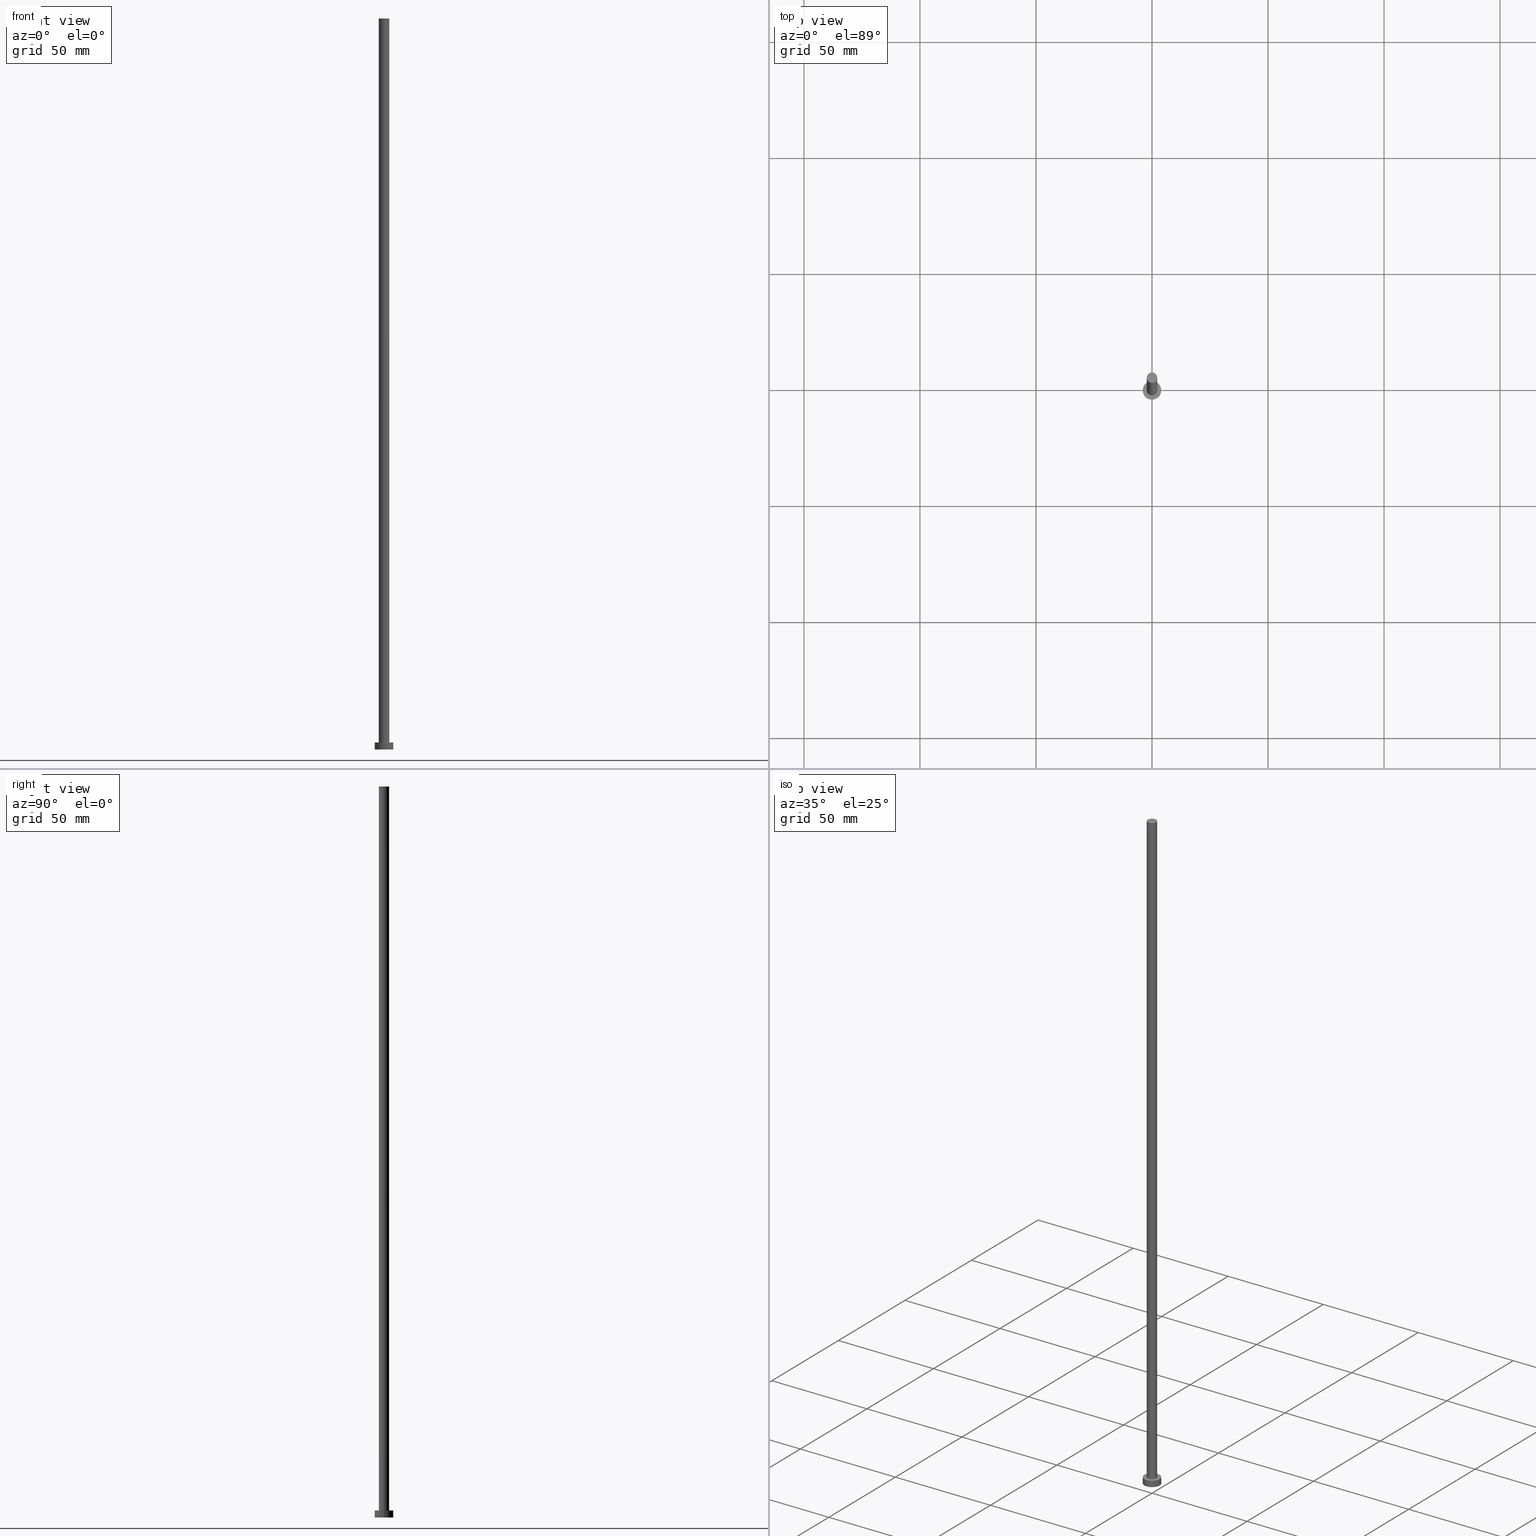
[diagram: canonical four-view strip — front | top / right | iso, engineering-drawing reading convention]
A machine part, canonical four-view strip (front | top / right | iso — engineering-drawing reading convention). The complete STEP part file that produces these views, byte-faithful:
ISO-10303-21;
HEADER;
FILE_DESCRIPTION (( 'STEP AP203' ),
    '1' );
FILE_NAME ('6284.STEP',
    '2023-02-12T12:33:04',
    ( '' ),
    ( '' ),
    'SwSTEP 2.0',
    'SolidWorks 2019',
    '' );
FILE_SCHEMA (( 'CONFIG_CONTROL_DESIGN' ));
ENDSEC;

DATA;
#1 = APPROVAL_STATUS ( 'not_yet_approved' ) ;
#2 = APPROVAL_STATUS ( 'not_yet_approved' ) ;
#3 = ORIENTED_EDGE ( 'NONE', *, *, #124, .T. ) ;
#4 = ADVANCED_FACE ( 'NONE', ( #28 ), #208, .T. ) ;
#5 = CC_DESIGN_DATE_AND_TIME_ASSIGNMENT ( #69, #27, ( #230 ) ) ;
#6 = ORIENTED_EDGE ( 'NONE', *, *, #118, .T. ) ;
#7 = PERSON ( 'NEUR�EN�', 'NEUR�EN�', 'NEUR�EN�', ('NEUR�EN�'), ('NEUR�EN�'), ('NEUR�EN�') ) ;
#8 = CARTESIAN_POINT ( 'NONE',  ( 0.000000000000000000, 0.000000000000000000, 315.0000000000000000 ) ) ;
#9 = CIRCLE ( 'NONE', #45, 2.250000000000000000 ) ;
#10 = CC_DESIGN_APPROVAL ( #105, ( #171 ) ) ;
#11 = EDGE_LOOP ( 'NONE', ( #88, #152 ) ) ;
#12 = DIRECTION ( 'NONE',  ( -0.000000000000000000, -0.000000000000000000, -1.000000000000000000 ) ) ;
#13 = DIRECTION ( 'NONE',  ( 1.000000000000000000, 0.000000000000000000, 0.000000000000000000 ) ) ;
#14 =( NAMED_UNIT ( * ) PLANE_ANGLE_UNIT ( ) SI_UNIT ( $, .RADIAN. ) );
#15 = CARTESIAN_POINT ( 'NONE',  ( 2.250000000000000000, 2.755455298081544285E-16, 3.000000000000000000 ) ) ;
#16 = LOCAL_TIME ( 13, 33, 4.000000000000000000, #198 ) ;
#17 = CARTESIAN_POINT ( 'NONE',  ( 0.000000000000000000, 0.000000000000000000, 3.000000000000000000 ) ) ;
#18 = CALENDAR_DATE ( 2023, 12, 2 ) ;
#19 = CARTESIAN_POINT ( 'NONE',  ( 4.000000000000000000, 4.898587196589412829E-16, 3.000000000000000000 ) ) ;
#20 = DATE_AND_TIME ( #62, #87 ) ;
#21 = ORGANIZATION ( 'NEUR�EN�', 'NEUR�EN�', '' ) ;
#22 = ORIENTED_EDGE ( 'NONE', *, *, #149, .T. ) ;
#23 = AXIS2_PLACEMENT_3D ( 'NONE', #249, #80, #117 ) ;
#24 = ORIENTED_EDGE ( 'NONE', *, *, #34, .T. ) ;
#25 = EDGE_CURVE ( 'NONE', #74, #108, #167, .T. ) ;
#26 = DATE_AND_TIME ( #71, #185 ) ;
#27 = DATE_TIME_ROLE ( 'classification_date' ) ;
#28 = FACE_OUTER_BOUND ( 'NONE', #65, .T. ) ;
#29 = EDGE_CURVE ( 'NONE', #70, #130, #57, .T. ) ;
#30 = PERSON_AND_ORGANIZATION_ROLE ( 'design_supplier' ) ;
#31 = ORIENTED_EDGE ( 'NONE', *, *, #118, .F. ) ;
#32 = DIRECTION ( 'NONE',  ( 0.000000000000000000, 0.000000000000000000, 1.000000000000000000 ) ) ;
#33 = DIRECTION ( 'NONE',  ( -1.000000000000000000, 0.000000000000000000, 0.000000000000000000 ) ) ;
#34 = EDGE_CURVE ( 'NONE', #188, #168, #72, .T. ) ;
#35 = DIRECTION ( 'NONE',  ( -0.000000000000000000, -0.000000000000000000, -1.000000000000000000 ) ) ;
#36 = VECTOR ( 'NONE', #157, 1000.000000000000000 ) ;
#37 = DIRECTION ( 'NONE',  ( 0.000000000000000000, 0.000000000000000000, 1.000000000000000000 ) ) ;
#38 = CARTESIAN_POINT ( 'NONE',  ( 0.000000000000000000, 0.000000000000000000, 3.000000000000000000 ) ) ;
#39 = CC_DESIGN_PERSON_AND_ORGANIZATION_ASSIGNMENT ( #67, #224, ( #230 ) ) ;
#40 = APPROVAL_ROLE ( '' ) ;
#41 = AXIS2_PLACEMENT_3D ( 'NONE', #98, #232, #95 ) ;
#42 = CALENDAR_DATE ( 2023, 12, 2 ) ;
#43 = ORIENTED_EDGE ( 'NONE', *, *, #55, .F. ) ;
#44 = ORIENTED_EDGE ( 'NONE', *, *, #191, .T. ) ;
#45 = AXIS2_PLACEMENT_3D ( 'NONE', #38, #253, #173 ) ;
#46 = APPROVAL_ROLE ( '' ) ;
#47 = ORIENTED_EDGE ( 'NONE', *, *, #149, .F. ) ;
#48 = CC_DESIGN_PERSON_AND_ORGANIZATION_ASSIGNMENT ( #200, #147, ( #121 ) ) ;
#49 =( NAMED_UNIT ( * ) SI_UNIT ( $, .STERADIAN. ) SOLID_ANGLE_UNIT ( ) );
#50 = EDGE_LOOP ( 'NONE', ( #3, #125 ) ) ;
#51 = DIRECTION ( 'NONE',  ( 1.000000000000000000, 0.000000000000000000, 0.000000000000000000 ) ) ;
#52 = EDGE_CURVE ( 'NONE', #188, #108, #166, .T. ) ;
#53 = DIRECTION ( 'NONE',  ( -1.000000000000000000, 0.000000000000000000, 0.000000000000000000 ) ) ;
#54 = DIRECTION ( 'NONE',  ( -0.000000000000000000, -0.000000000000000000, -1.000000000000000000 ) ) ;
#55 = EDGE_CURVE ( 'NONE', #131, #70, #115, .T. ) ;
#56 = DIRECTION ( 'NONE',  ( 0.000000000000000000, 0.000000000000000000, 1.000000000000000000 ) ) ;
#57 = CIRCLE ( 'NONE', #204, 2.250000000000000000 ) ;
#58 = CARTESIAN_POINT ( 'NONE',  ( 0.000000000000000000, 0.000000000000000000, 0.000000000000000000 ) ) ;
#59 = APPROVAL_PERSON_ORGANIZATION ( #102, #193, #40 ) ;
#60 = CARTESIAN_POINT ( 'NONE',  ( -2.250000000000000000, 0.000000000000000000, 3.000000000000000000 ) ) ;
#61 = PRODUCT_RELATED_PRODUCT_CATEGORY ( 'detail', '', ( #83 ) ) ;
#62 = CALENDAR_DATE ( 2023, 12, 2 ) ;
#63 = APPROVAL_STATUS ( 'not_yet_approved' ) ;
#64 = CC_DESIGN_PERSON_AND_ORGANIZATION_ASSIGNMENT ( #165, #30, ( #121 ) ) ;
#65 = EDGE_LOOP ( 'NONE', ( #221, #242, #227, #94 ) ) ;
#66 = AXIS2_PLACEMENT_3D ( 'NONE', #141, #219, #158 ) ;
#67 = PERSON_AND_ORGANIZATION ( #7, #21 ) ;
#68 = UNCERTAINTY_MEASURE_WITH_UNIT (LENGTH_MEASURE( 1.000000000000000082E-05 ), #110, 'distance_accuracy_value', 'NONE');
#69 = DATE_AND_TIME ( #223, #93 ) ;
#70 = VERTEX_POINT ( 'NONE', #60 ) ;
#71 = CALENDAR_DATE ( 2023, 12, 2 ) ;
#72 = CIRCLE ( 'NONE', #85, 4.000000000000000000 ) ;
#73 = ORIENTED_EDGE ( 'NONE', *, *, #34, .F. ) ;
#74 = VERTEX_POINT ( 'NONE', #136 ) ;
#75 = ORIENTED_EDGE ( 'NONE', *, *, #52, .F. ) ;
#76 = ADVANCED_FACE ( 'NONE', ( #197, #199 ), #214, .T. ) ;
#77 = CYLINDRICAL_SURFACE ( 'NONE', #109, 4.000000000000000000 ) ;
#78 = DIRECTION ( 'NONE',  ( 0.000000000000000000, 0.000000000000000000, 1.000000000000000000 ) ) ;
#79 = ADVANCED_FACE ( 'NONE', ( #114 ), #112, .T. ) ;
#80 = DIRECTION ( 'NONE',  ( 0.000000000000000000, 0.000000000000000000, 1.000000000000000000 ) ) ;
#81 = MECHANICAL_CONTEXT ( 'NONE', #122, 'mechanical' ) ;
#82 = CARTESIAN_POINT ( 'NONE',  ( 0.000000000000000000, 0.000000000000000000, 315.0000000000000000 ) ) ;
#83 = PRODUCT ( '6284', '6284', '', ( #81 ) ) ;
#84 = PERSON_AND_ORGANIZATION ( #7, #21 ) ;
#85 = AXIS2_PLACEMENT_3D ( 'NONE', #241, #144, #169 ) ;
#86 = DIRECTION ( 'NONE',  ( 1.000000000000000000, 0.000000000000000000, 0.000000000000000000 ) ) ;
#87 = LOCAL_TIME ( 13, 33, 4.000000000000000000, #216 ) ;
#88 = ORIENTED_EDGE ( 'NONE', *, *, #29, .F. ) ;
#89 = ORIENTED_EDGE ( 'NONE', *, *, #52, .T. ) ;
#90 = ORIENTED_EDGE ( 'NONE', *, *, #220, .F. ) ;
#91 = AXIS2_PLACEMENT_3D ( 'NONE', #100, #194, #13 ) ;
#92 = DIRECTION ( 'NONE',  ( -1.000000000000000000, 0.000000000000000000, 0.000000000000000000 ) ) ;
#93 = LOCAL_TIME ( 13, 33, 4.000000000000000000, #146 ) ;
#94 = ORIENTED_EDGE ( 'NONE', *, *, #29, .T. ) ;
#95 = DIRECTION ( 'NONE',  ( 1.000000000000000000, 0.000000000000000000, -0.000000000000000000 ) ) ;
#96 = DIRECTION ( 'NONE',  ( 1.000000000000000000, 0.000000000000000000, 0.000000000000000000 ) ) ;
#97 = CARTESIAN_POINT ( 'NONE',  ( 4.000000000000000000, 4.898587196589412829E-16, 3.000000000000000000 ) ) ;
#98 = CARTESIAN_POINT ( 'NONE',  ( 0.000000000000000000, 0.000000000000000000, 0.000000000000000000 ) ) ;
#99 = DATE_AND_TIME ( #18, #16 ) ;
#100 = CARTESIAN_POINT ( 'NONE',  ( 0.000000000000000000, 0.000000000000000000, 315.0000000000000000 ) ) ;
#101 =( GEOMETRIC_REPRESENTATION_CONTEXT ( 3 ) GLOBAL_UNCERTAINTY_ASSIGNED_CONTEXT ( ( #68 ) ) GLOBAL_UNIT_ASSIGNED_CONTEXT ( ( #110, #14, #49 ) ) REPRESENTATION_CONTEXT ( 'NONE', 'WORKASPACE' ) );
#102 = PERSON_AND_ORGANIZATION ( #7, #21 ) ;
#103 = DIRECTION ( 'NONE',  ( 0.000000000000000000, 0.000000000000000000, 1.000000000000000000 ) ) ;
#104 = PERSON_AND_ORGANIZATION_ROLE ( 'design_owner' ) ;
#105 = APPROVAL ( #63, 'NEUR�EN�' ) ;
#106 = AXIS2_PLACEMENT_3D ( 'NONE', #82, #37, #51 ) ;
#107 = DIRECTION ( 'NONE',  ( -0.000000000000000000, -0.000000000000000000, -1.000000000000000000 ) ) ;
#108 = VERTEX_POINT ( 'NONE', #176 ) ;
#109 = AXIS2_PLACEMENT_3D ( 'NONE', #154, #229, #53 ) ;
#110 =( LENGTH_UNIT ( ) NAMED_UNIT ( * ) SI_UNIT ( .MILLI., .METRE. ) );
#111 = CYLINDRICAL_SURFACE ( 'NONE', #181, 4.000000000000000000 ) ;
#112 = PLANE ( 'NONE',  #113 ) ;
#113 = AXIS2_PLACEMENT_3D ( 'NONE', #212, #195, #217 ) ;
#114 = FACE_OUTER_BOUND ( 'NONE', #50, .T. ) ;
#115 = LINE ( 'NONE', #192, #252 ) ;
#116 = DATE_TIME_ROLE ( 'creation_date' ) ;
#117 = DIRECTION ( 'NONE',  ( 1.000000000000000000, 0.000000000000000000, 0.000000000000000000 ) ) ;
#118 = EDGE_CURVE ( 'NONE', #168, #74, #236, .T. ) ;
#119 = APPROVAL_DATE_TIME ( #99, #193 ) ;
#120 = DIRECTION ( 'NONE',  ( 0.000000000000000000, 0.000000000000000000, 1.000000000000000000 ) ) ;
#121 = PRODUCT_DEFINITION_FORMATION_WITH_SPECIFIED_SOURCE ( 'LIBOVOLN�', '', #83, .NOT_KNOWN. ) ;
#122 = APPLICATION_CONTEXT ( 'configuration controlled 3d designs of mechanical parts and assemblies' ) ;
#123 = DATE_AND_TIME ( #42, #254 ) ;
#124 = EDGE_CURVE ( 'NONE', #131, #150, #245, .T. ) ;
#125 = ORIENTED_EDGE ( 'NONE', *, *, #220, .T. ) ;
#126 = EDGE_LOOP ( 'NONE', ( #31, #73, #89, #164 ) ) ;
#127 = AXIS2_PLACEMENT_3D ( 'NONE', #228, #56, #96 ) ;
#128 = ADVANCED_BREP_SHAPE_REPRESENTATION ( '6284', ( #250, #151 ), #101 ) ;
#129 = AXIS2_PLACEMENT_3D ( 'NONE', #8, #107, #92 ) ;
#130 = VERTEX_POINT ( 'NONE', #15 ) ;
#131 = VERTEX_POINT ( 'NONE', #213 ) ;
#132 = DIRECTION ( 'NONE',  ( 1.000000000000000000, 0.000000000000000000, 0.000000000000000000 ) ) ;
#133 = VECTOR ( 'NONE', #35, 1000.000000000000000 ) ;
#134 = CARTESIAN_POINT ( 'NONE',  ( 2.250000000000000000, 2.755455298081544285E-16, 315.0000000000000000 ) ) ;
#135 = FACE_OUTER_BOUND ( 'NONE', #209, .T. ) ;
#136 = CARTESIAN_POINT ( 'NONE',  ( 4.000000000000000000, 4.898587196589412829E-16, 0.000000000000000000 ) ) ;
#137 = CARTESIAN_POINT ( 'NONE',  ( 0.000000000000000000, 0.000000000000000000, 3.000000000000000000 ) ) ;
#138 = APPROVAL_DATE_TIME ( #123, #105 ) ;
#139 = DIRECTION ( 'NONE',  ( 1.000000000000000000, 0.000000000000000000, -0.000000000000000000 ) ) ;
#140 = PERSON_AND_ORGANIZATION_ROLE ( 'creator' ) ;
#141 = CARTESIAN_POINT ( 'NONE',  ( 0.000000000000000000, 0.000000000000000000, 315.0000000000000000 ) ) ;
#142 = COORDINATED_UNIVERSAL_TIME_OFFSET ( 1, 0, .AHEAD. ) ;
#143 = APPROVAL_PERSON_ORGANIZATION ( #160, #105, #218 ) ;
#144 = DIRECTION ( 'NONE',  ( 0.000000000000000000, 0.000000000000000000, 1.000000000000000000 ) ) ;
#145 = CC_DESIGN_PERSON_AND_ORGANIZATION_ASSIGNMENT ( #84, #104, ( #83 ) ) ;
#146 = COORDINATED_UNIVERSAL_TIME_OFFSET ( 1, 0, .AHEAD. ) ;
#147 = PERSON_AND_ORGANIZATION_ROLE ( 'creator' ) ;
#148 = APPROVAL_DATE_TIME ( #26, #226 ) ;
#149 = EDGE_CURVE ( 'NONE', #168, #188, #234, .T. ) ;
#150 = VERTEX_POINT ( 'NONE', #155 ) ;
#151 = AXIS2_PLACEMENT_3D ( 'NONE', #58, #120, #86 ) ;
#152 = ORIENTED_EDGE ( 'NONE', *, *, #191, .F. ) ;
#153 = FACE_OUTER_BOUND ( 'NONE', #203, .T. ) ;
#154 = CARTESIAN_POINT ( 'NONE',  ( 0.000000000000000000, 0.000000000000000000, 3.000000000000000000 ) ) ;
#155 = CARTESIAN_POINT ( 'NONE',  ( 2.250000000000000000, 2.755455298081544285E-16, 315.0000000000000000 ) ) ;
#156 = FACE_OUTER_BOUND ( 'NONE', #246, .T. ) ;
#157 = DIRECTION ( 'NONE',  ( -0.000000000000000000, -0.000000000000000000, -1.000000000000000000 ) ) ;
#158 = DIRECTION ( 'NONE',  ( -1.000000000000000000, 0.000000000000000000, 0.000000000000000000 ) ) ;
#159 = CC_DESIGN_DATE_AND_TIME_ASSIGNMENT ( #20, #116, ( #171 ) ) ;
#160 = PERSON_AND_ORGANIZATION ( #7, #21 ) ;
#161 = CIRCLE ( 'NONE', #106, 2.250000000000000000 ) ;
#162 = CC_DESIGN_APPROVAL ( #226, ( #230 ) ) ;
#163 = EDGE_LOOP ( 'NONE', ( #24, #22 ) ) ;
#164 = ORIENTED_EDGE ( 'NONE', *, *, #196, .T. ) ;
#165 = PERSON_AND_ORGANIZATION ( #7, #21 ) ;
#166 = LINE ( 'NONE', #231, #133 ) ;
#167 = CIRCLE ( 'NONE', #179, 4.000000000000000000 ) ;
#168 = VERTEX_POINT ( 'NONE', #97 ) ;
#169 = DIRECTION ( 'NONE',  ( 1.000000000000000000, 0.000000000000000000, 0.000000000000000000 ) ) ;
#170 = DIRECTION ( 'NONE',  ( -0.000000000000000000, -0.000000000000000000, -1.000000000000000000 ) ) ;
#171 = PRODUCT_DEFINITION ( 'NEZN�M�', '', #121, #233 ) ;
#172 = APPLICATION_PROTOCOL_DEFINITION ( 'international standard', 'config_control_design', 1994, #122 ) ;
#173 = DIRECTION ( 'NONE',  ( 1.000000000000000000, 0.000000000000000000, 0.000000000000000000 ) ) ;
#174 = LINE ( 'NONE', #134, #178 ) ;
#175 = AXIS2_PLACEMENT_3D ( 'NONE', #17, #78, #139 ) ;
#176 = CARTESIAN_POINT ( 'NONE',  ( -4.000000000000000000, 0.000000000000000000, 0.000000000000000000 ) ) ;
#177 = APPLICATION_CONTEXT ( 'configuration controlled 3d designs of mechanical parts and assemblies' ) ;
#178 = VECTOR ( 'NONE', #12, 1000.000000000000000 ) ;
#179 = AXIS2_PLACEMENT_3D ( 'NONE', #187, #103, #132 ) ;
#180 = ORIENTED_EDGE ( 'NONE', *, *, #238, .T. ) ;
#181 = AXIS2_PLACEMENT_3D ( 'NONE', #137, #170, #33 ) ;
#182 = SECURITY_CLASSIFICATION_LEVEL ( 'unclassified' ) ;
#183 = ORIENTED_EDGE ( 'NONE', *, *, #25, .F. ) ;
#184 = SHAPE_DEFINITION_REPRESENTATION ( #255, #128 ) ;
#185 = LOCAL_TIME ( 13, 33, 4.000000000000000000, #205 ) ;
#186 = PERSON_AND_ORGANIZATION ( #7, #21 ) ;
#187 = CARTESIAN_POINT ( 'NONE',  ( 0.000000000000000000, 0.000000000000000000, 0.000000000000000000 ) ) ;
#188 = VERTEX_POINT ( 'NONE', #251 ) ;
#189 = ORIENTED_EDGE ( 'NONE', *, *, #25, .T. ) ;
#190 = CC_DESIGN_SECURITY_CLASSIFICATION ( #230, ( #121 ) ) ;
#191 = EDGE_CURVE ( 'NONE', #130, #70, #9, .T. ) ;
#192 = CARTESIAN_POINT ( 'NONE',  ( -2.250000000000000000, 0.000000000000000000, 315.0000000000000000 ) ) ;
#193 = APPROVAL ( #1, 'NEUR�EN�' ) ;
#194 = DIRECTION ( 'NONE',  ( 0.000000000000000000, 0.000000000000000000, 1.000000000000000000 ) ) ;
#195 = DIRECTION ( 'NONE',  ( 0.000000000000000000, 0.000000000000000000, 1.000000000000000000 ) ) ;
#196 = EDGE_CURVE ( 'NONE', #108, #74, #239, .T. ) ;
#197 = FACE_BOUND ( 'NONE', #11, .T. ) ;
#198 = COORDINATED_UNIVERSAL_TIME_OFFSET ( 1, 0, .AHEAD. ) ;
#199 = FACE_OUTER_BOUND ( 'NONE', #163, .T. ) ;
#200 = PERSON_AND_ORGANIZATION ( #7, #21 ) ;
#201 = CC_DESIGN_APPROVAL ( #193, ( #121 ) ) ;
#202 = PERSON_AND_ORGANIZATION ( #7, #21 ) ;
#203 = EDGE_LOOP ( 'NONE', ( #47, #6, #189, #75 ) ) ;
#204 = AXIS2_PLACEMENT_3D ( 'NONE', #222, #32, #210 ) ;
#205 = COORDINATED_UNIVERSAL_TIME_OFFSET ( 1, 0, .AHEAD. ) ;
#206 = CLOSED_SHELL ( 'NONE', ( #243, #211, #240, #76, #207, #4, #79 ) ) ;
#207 = ADVANCED_FACE ( 'NONE', ( #156 ), #215, .F. ) ;
#208 = CYLINDRICAL_SURFACE ( 'NONE', #129, 2.250000000000000000 ) ;
#209 = EDGE_LOOP ( 'NONE', ( #90, #180, #44, #43 ) ) ;
#210 = DIRECTION ( 'NONE',  ( 1.000000000000000000, 0.000000000000000000, 0.000000000000000000 ) ) ;
#211 = ADVANCED_FACE ( 'NONE', ( #153 ), #111, .T. ) ;
#212 = CARTESIAN_POINT ( 'NONE',  ( 0.000000000000000000, 0.000000000000000000, 315.0000000000000000 ) ) ;
#213 = CARTESIAN_POINT ( 'NONE',  ( -2.250000000000000000, 0.000000000000000000, 315.0000000000000000 ) ) ;
#214 = PLANE ( 'NONE',  #175 ) ;
#215 = PLANE ( 'NONE',  #41 ) ;
#216 = COORDINATED_UNIVERSAL_TIME_OFFSET ( 1, 0, .AHEAD. ) ;
#217 = DIRECTION ( 'NONE',  ( 1.000000000000000000, 0.000000000000000000, -0.000000000000000000 ) ) ;
#218 = APPROVAL_ROLE ( '' ) ;
#219 = DIRECTION ( 'NONE',  ( -0.000000000000000000, -0.000000000000000000, -1.000000000000000000 ) ) ;
#220 = EDGE_CURVE ( 'NONE', #150, #131, #161, .T. ) ;
#221 = ORIENTED_EDGE ( 'NONE', *, *, #238, .F. ) ;
#222 = CARTESIAN_POINT ( 'NONE',  ( 0.000000000000000000, 0.000000000000000000, 3.000000000000000000 ) ) ;
#223 = CALENDAR_DATE ( 2023, 12, 2 ) ;
#224 = PERSON_AND_ORGANIZATION_ROLE ( 'classification_officer' ) ;
#225 = ORIENTED_EDGE ( 'NONE', *, *, #196, .F. ) ;
#226 = APPROVAL ( #2, 'NEUR�EN�' ) ;
#227 = ORIENTED_EDGE ( 'NONE', *, *, #55, .T. ) ;
#228 = CARTESIAN_POINT ( 'NONE',  ( 0.000000000000000000, 0.000000000000000000, 3.000000000000000000 ) ) ;
#229 = DIRECTION ( 'NONE',  ( -0.000000000000000000, -0.000000000000000000, -1.000000000000000000 ) ) ;
#230 = SECURITY_CLASSIFICATION ( '', '', #182 ) ;
#231 = CARTESIAN_POINT ( 'NONE',  ( -4.000000000000000000, 0.000000000000000000, 3.000000000000000000 ) ) ;
#232 = DIRECTION ( 'NONE',  ( 0.000000000000000000, 0.000000000000000000, 1.000000000000000000 ) ) ;
#233 = DESIGN_CONTEXT ( 'detailed design', #177, 'design' ) ;
#234 = CIRCLE ( 'NONE', #127, 4.000000000000000000 ) ;
#235 = APPLICATION_PROTOCOL_DEFINITION ( 'international standard', 'config_control_design', 1994, #177 ) ;
#236 = LINE ( 'NONE', #19, #36 ) ;
#237 = CYLINDRICAL_SURFACE ( 'NONE', #66, 2.250000000000000000 ) ;
#238 = EDGE_CURVE ( 'NONE', #150, #130, #174, .T. ) ;
#239 = CIRCLE ( 'NONE', #23, 4.000000000000000000 ) ;
#240 = ADVANCED_FACE ( 'NONE', ( #247 ), #77, .T. ) ;
#241 = CARTESIAN_POINT ( 'NONE',  ( 0.000000000000000000, 0.000000000000000000, 3.000000000000000000 ) ) ;
#242 = ORIENTED_EDGE ( 'NONE', *, *, #124, .F. ) ;
#243 = ADVANCED_FACE ( 'NONE', ( #135 ), #237, .T. ) ;
#244 = CC_DESIGN_PERSON_AND_ORGANIZATION_ASSIGNMENT ( #202, #140, ( #171 ) ) ;
#245 = CIRCLE ( 'NONE', #91, 2.250000000000000000 ) ;
#246 = EDGE_LOOP ( 'NONE', ( #225, #183 ) ) ;
#247 = FACE_OUTER_BOUND ( 'NONE', #126, .T. ) ;
#248 = APPROVAL_PERSON_ORGANIZATION ( #186, #226, #46 ) ;
#249 = CARTESIAN_POINT ( 'NONE',  ( 0.000000000000000000, 0.000000000000000000, 0.000000000000000000 ) ) ;
#250 = MANIFOLD_SOLID_BREP ( 'P�idat vysunut�m3', #206 ) ;
#251 = CARTESIAN_POINT ( 'NONE',  ( -4.000000000000000000, 0.000000000000000000, 3.000000000000000000 ) ) ;
#252 = VECTOR ( 'NONE', #54, 1000.000000000000000 ) ;
#253 = DIRECTION ( 'NONE',  ( 0.000000000000000000, 0.000000000000000000, 1.000000000000000000 ) ) ;
#254 = LOCAL_TIME ( 13, 33, 4.000000000000000000, #142 ) ;
#255 = PRODUCT_DEFINITION_SHAPE ( 'NONE', 'NONE',  #171 ) ;
ENDSEC;
END-ISO-10303-21;
